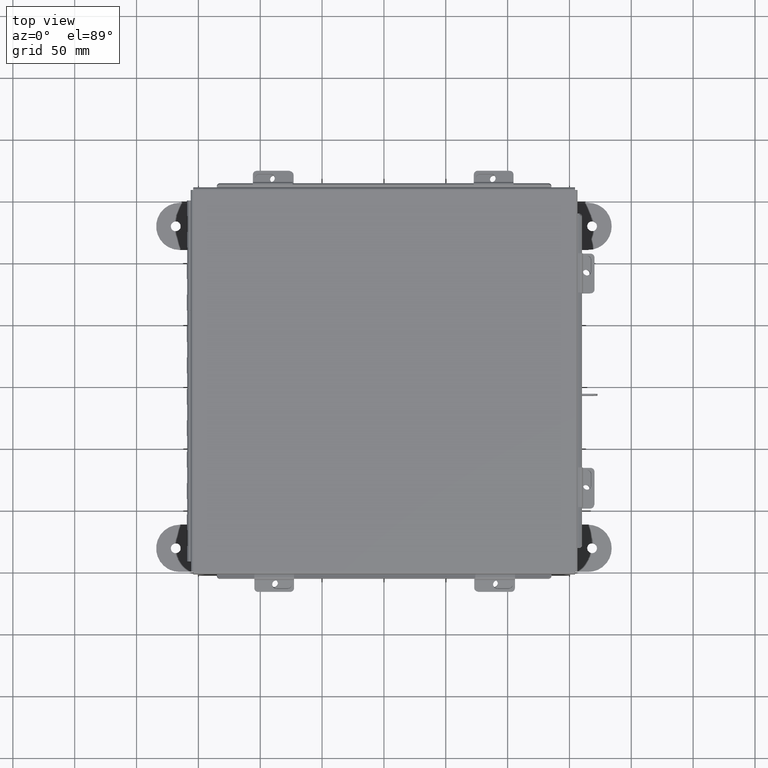
[diagram: clean part render]
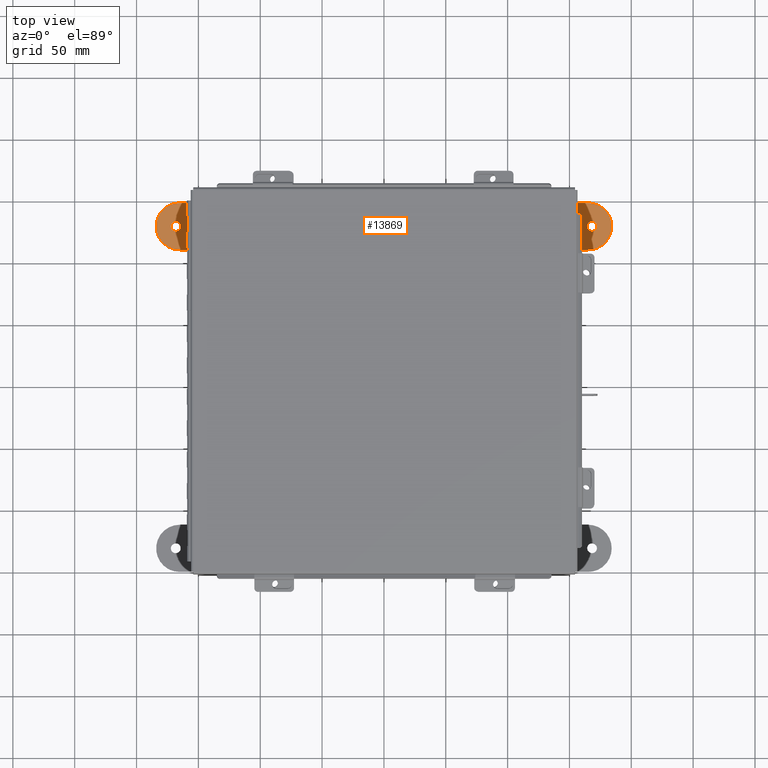
[diagram: same view with one face highlighted and labeled with its STEP entity id]
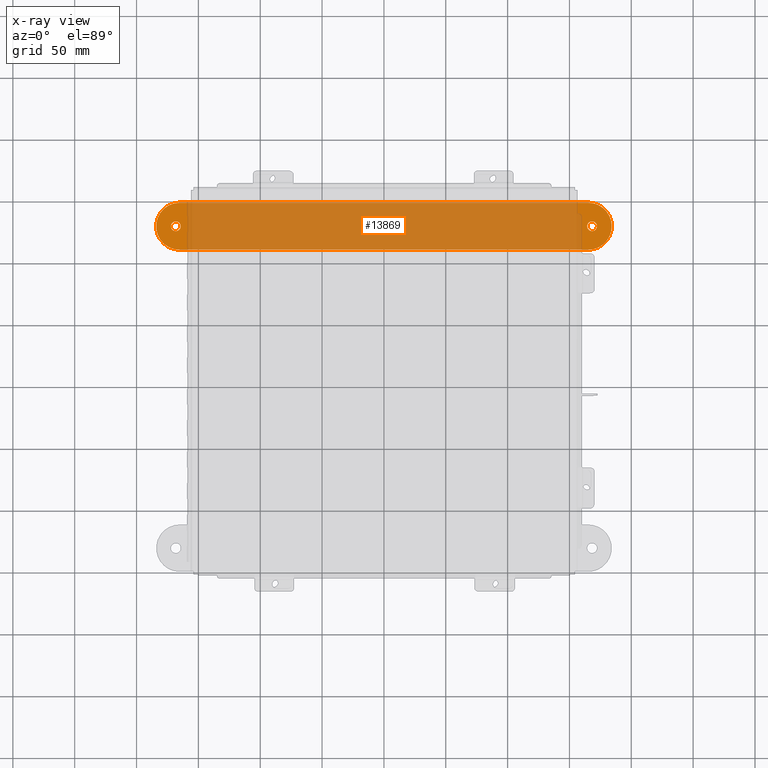
[diagram: x-ray of the same camera — body ghosted, the highlighted face saturated]
A machine part, top view. The second image highlights one B-rep face of the part: STEP entity #13869.
The next image is the same camera in x-ray: the body ghosted, the highlighted face saturated — about 89% of this face is hidden behind the body in this view.
In plain terms, the highlighted planar face has unit normal (0, -0, 1).
Its self-contained STEP definition (entity closure, byte-faithful):
#208 = DIRECTION ( 'NONE',  ( -1.000000000000000000, 0.0000000000000000000, 0.0000000000000000000 ) ) ;
#275 = CIRCLE ( 'NONE', #4268, 0.1564999999999992800 ) ;
#461 = DIRECTION ( 'NONE',  ( 1.000000000000000000, 0.0000000000000000000, 0.0000000000000000000 ) ) ;
#850 = EDGE_CURVE ( 'NONE', #5282, #8120, #275, .T. ) ;
#917 = DIRECTION ( 'NONE',  ( -1.000000000000000000, 0.0000000000000000000, 0.0000000000000000000 ) ) ;
#1120 = ORIENTED_EDGE ( 'NONE', *, *, #7326, .T. ) ;
#1463 = CARTESIAN_POINT ( 'NONE',  ( -6.625000000000000900, 0.4120940649496083700, -0.1345000000000000100 ) ) ;
#1754 = EDGE_LOOP ( 'NONE', ( #10183, #7054 ) ) ;
#2134 = CARTESIAN_POINT ( 'NONE',  ( 6.500000000000000000, 1.162094064949614100, -0.1345000000000000100 ) ) ;
#2678 = CARTESIAN_POINT ( 'NONE',  ( 6.625000000000000900, 0.4120940649496083700, -0.1345000000000000100 ) ) ;
#2728 = DIRECTION ( 'NONE',  ( -1.000000000000000000, 0.0000000000000000000, 0.0000000000000000000 ) ) ;
#2926 = EDGE_CURVE ( 'NONE', #3263, #15930, #9968, .T. ) ;
#3187 = EDGE_CURVE ( 'NONE', #10294, #13595, #9754, .T. ) ;
#3263 = VERTEX_POINT ( 'NONE', #14560 ) ;
#3576 = EDGE_CURVE ( 'NONE', #10372, #10294, #9172, .T. ) ;
#3595 = CARTESIAN_POINT ( 'NONE',  ( 6.500000000000000000, 0.4120940649496125900, -0.1345000000000000100 ) ) ;
#3918 = DIRECTION ( 'NONE',  ( -1.000000000000000000, 0.0000000000000000000, 0.0000000000000000000 ) ) ;
#3920 = CARTESIAN_POINT ( 'NONE',  ( -6.500000000000000000, -0.3379059350503874600, -0.1345000000000000100 ) ) ;
#4268 = AXIS2_PLACEMENT_3D ( 'NONE', #14976, #7597, #208 ) ;
#4868 = DIRECTION ( 'NONE',  ( -1.000000000000000000, 0.0000000000000000000, 0.0000000000000000000 ) ) ;
#5102 = PLANE ( 'NONE',  #6277 ) ;
#5264 = AXIS2_PLACEMENT_3D ( 'NONE', #2678, #11322, #3918 ) ;
#5282 = VERTEX_POINT ( 'NONE', #12837 ) ;
#5512 = CARTESIAN_POINT ( 'NONE',  ( 6.625000000000000900, 0.4120940649496083700, -0.1345000000000000100 ) ) ;
#5606 = EDGE_LOOP ( 'NONE', ( #11849, #1120 ) ) ;
#5851 = AXIS2_PLACEMENT_3D ( 'NONE', #5512, #14166, #6780 ) ;
#6039 = EDGE_CURVE ( 'NONE', #8049, #6557, #12797, .T. ) ;
#6277 = AXIS2_PLACEMENT_3D ( 'NONE', #8768, #6343, #14968 ) ;
#6327 = CARTESIAN_POINT ( 'NONE',  ( -6.500000000000000000, 1.162094064949612300, -0.1345000000000000100 ) ) ;
#6343 = DIRECTION ( 'NONE',  ( -0.0000000000000000000, 0.0000000000000000000, -1.000000000000000000 ) ) ;
#6506 = CARTESIAN_POINT ( 'NONE',  ( -6.500000000000000000, -0.3379059350503874600, -0.1345000000000000100 ) ) ;
#6557 = VERTEX_POINT ( 'NONE', #7583 ) ;
#6626 = EDGE_LOOP ( 'NONE', ( #13732, #12654, #7933, #15078, #10519 ) ) ;
#6702 = VECTOR ( 'NONE', #10327, 39.37007874015748100 ) ;
#6780 = DIRECTION ( 'NONE',  ( -1.000000000000000000, 0.0000000000000000000, 0.0000000000000000000 ) ) ;
#7054 = ORIENTED_EDGE ( 'NONE', *, *, #14983, .F. ) ;
#7282 = VECTOR ( 'NONE', #9937, 39.37007874015748100 ) ;
#7326 = EDGE_CURVE ( 'NONE', #8120, #5282, #14835, .T. ) ;
#7583 = CARTESIAN_POINT ( 'NONE',  ( 6.468500000000001500, 0.4120940649496083700, -0.1345000000000000100 ) ) ;
#7597 = DIRECTION ( 'NONE',  ( 0.0000000000000000000, 0.0000000000000000000, 1.000000000000000000 ) ) ;
#7688 = LINE ( 'NONE', #6506, #7282 ) ;
#7831 = DIRECTION ( 'NONE',  ( 0.0000000000000000000, 0.0000000000000000000, 1.000000000000000000 ) ) ;
#7859 = CARTESIAN_POINT ( 'NONE',  ( -6.781499999999999400, 0.4120940649496083700, -0.1345000000000000100 ) ) ;
#7933 = ORIENTED_EDGE ( 'NONE', *, *, #2926, .F. ) ;
#8049 = VERTEX_POINT ( 'NONE', #11445 ) ;
#8120 = VERTEX_POINT ( 'NONE', #7859 ) ;
#8309 = DIRECTION ( 'NONE',  ( 0.0000000000000000000, 0.0000000000000000000, 1.000000000000000000 ) ) ;
#8738 = AXIS2_PLACEMENT_3D ( 'NONE', #15205, #7831, #461 ) ;
#8768 = CARTESIAN_POINT ( 'NONE',  ( 6.500000000000000000, 0.4120940649496125900, -0.1345000000000000100 ) ) ;
#8834 = CARTESIAN_POINT ( 'NONE',  ( 6.500000000000000000, -0.3379059350503891300, -0.1345000000000000100 ) ) ;
#8934 = EDGE_CURVE ( 'NONE', #15930, #10372, #7688, .T. ) ;
#9172 = CIRCLE ( 'NONE', #13930, 0.7500000000000015500 ) ;
#9754 = CIRCLE ( 'NONE', #10081, 0.7500000000000015500 ) ;
#9937 = DIRECTION ( 'NONE',  ( 1.000000000000000000, -1.260852920152736700E-016, 0.0000000000000000000 ) ) ;
#9968 = CIRCLE ( 'NONE', #8738, 0.7499999999999993300 ) ;
#9978 = LINE ( 'NONE', #6327, #6702 ) ;
#10079 = FACE_BOUND ( 'NONE', #1754, .T. ) ;
#10081 = AXIS2_PLACEMENT_3D ( 'NONE', #15690, #8309, #917 ) ;
#10100 = DIRECTION ( 'NONE',  ( 0.0000000000000000000, 0.0000000000000000000, 1.000000000000000000 ) ) ;
#10183 = ORIENTED_EDGE ( 'NONE', *, *, #6039, .F. ) ;
#10294 = VERTEX_POINT ( 'NONE', #11157 ) ;
#10327 = DIRECTION ( 'NONE',  ( -1.000000000000000000, -1.260852920152736700E-016, -0.0000000000000000000 ) ) ;
#10372 = VERTEX_POINT ( 'NONE', #8834 ) ;
#10464 = FACE_OUTER_BOUND ( 'NONE', #6626, .T. ) ;
#10519 = ORIENTED_EDGE ( 'NONE', *, *, #3187, .F. ) ;
#11157 = CARTESIAN_POINT ( 'NONE',  ( 7.250000000000001800, 0.4120940649496125900, -0.1345000000000000100 ) ) ;
#11322 = DIRECTION ( 'NONE',  ( -0.0000000000000000000, -0.0000000000000000000, -1.000000000000000000 ) ) ;
#11445 = CARTESIAN_POINT ( 'NONE',  ( 6.781499999999999400, 0.4120940649496083700, -0.1345000000000000100 ) ) ;
#11701 = EDGE_CURVE ( 'NONE', #13595, #3263, #9978, .T. ) ;
#11849 = ORIENTED_EDGE ( 'NONE', *, *, #850, .T. ) ;
#12260 = DIRECTION ( 'NONE',  ( 0.0000000000000000000, 0.0000000000000000000, 1.000000000000000000 ) ) ;
#12654 = ORIENTED_EDGE ( 'NONE', *, *, #8934, .F. ) ;
#12797 = CIRCLE ( 'NONE', #5264, 0.1564999999999992800 ) ;
#12837 = CARTESIAN_POINT ( 'NONE',  ( -6.468500000000001500, 0.4120940649496083700, -0.1345000000000000100 ) ) ;
#13378 = FACE_BOUND ( 'NONE', #5606, .T. ) ;
#13595 = VERTEX_POINT ( 'NONE', #2134 ) ;
#13732 = ORIENTED_EDGE ( 'NONE', *, *, #3576, .F. ) ;
#13869 = ADVANCED_FACE ( 'NONE', ( #10464, #13378, #10079 ), #5102, .T. ) ;
#13930 = AXIS2_PLACEMENT_3D ( 'NONE', #3595, #12260, #4868 ) ;
#14166 = DIRECTION ( 'NONE',  ( -0.0000000000000000000, -0.0000000000000000000, -1.000000000000000000 ) ) ;
#14560 = CARTESIAN_POINT ( 'NONE',  ( -6.500000000000000000, 1.162094064949612300, -0.1345000000000000100 ) ) ;
#14835 = CIRCLE ( 'NONE', #15586, 0.1564999999999992800 ) ;
#14968 = DIRECTION ( 'NONE',  ( -1.000000000000000000, 0.0000000000000000000, 0.0000000000000000000 ) ) ;
#14976 = CARTESIAN_POINT ( 'NONE',  ( -6.625000000000000900, 0.4120940649496083700, -0.1345000000000000100 ) ) ;
#14983 = EDGE_CURVE ( 'NONE', #6557, #8049, #15066, .T. ) ;
#15066 = CIRCLE ( 'NONE', #5851, 0.1564999999999992800 ) ;
#15078 = ORIENTED_EDGE ( 'NONE', *, *, #11701, .F. ) ;
#15205 = CARTESIAN_POINT ( 'NONE',  ( -6.500000000000000000, 0.4120940649496124300, -0.1345000000000000100 ) ) ;
#15586 = AXIS2_PLACEMENT_3D ( 'NONE', #1463, #10100, #2728 ) ;
#15690 = CARTESIAN_POINT ( 'NONE',  ( 6.500000000000000000, 0.4120940649496125900, -0.1345000000000000100 ) ) ;
#15930 = VERTEX_POINT ( 'NONE', #3920 ) ;